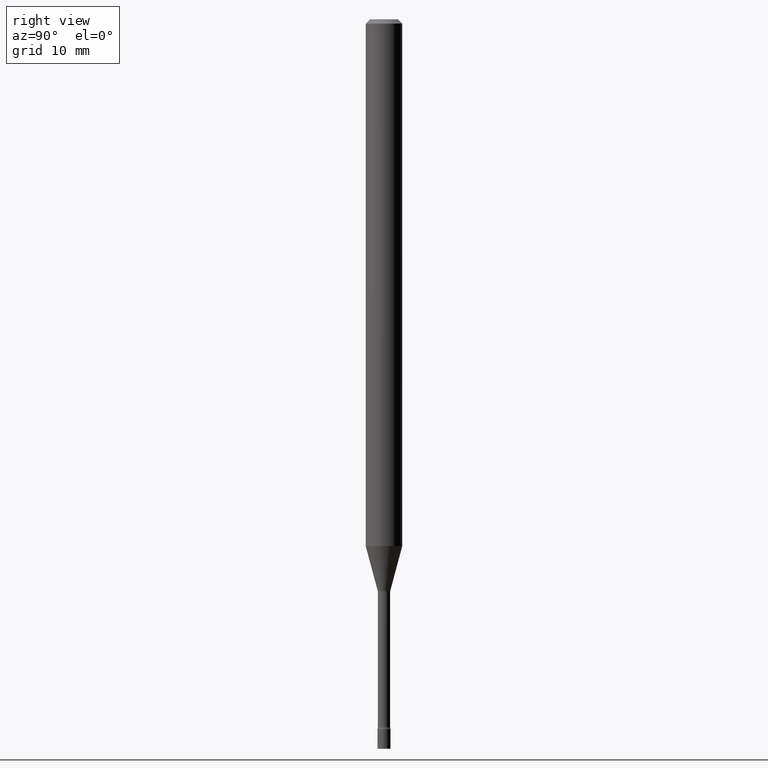
[diagram: clean part render]
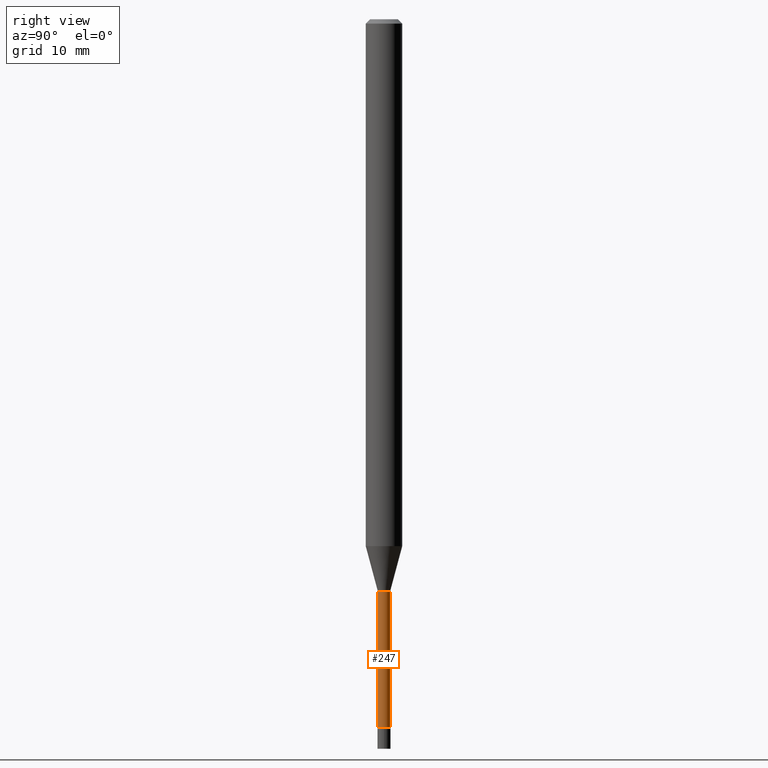
[diagram: same view with one face highlighted and labeled with its STEP entity id]
A machine part, right view. The second image highlights one B-rep face of the part: STEP entity #247.
In plain terms, the highlighted cylindrical surface (edge-blend (fillet) strip) has radius 0.5372 mm, axis along (-0, 0, 1).
Its self-contained STEP definition (entity closure, byte-faithful):
#1 = VECTOR ( 'NONE', #246, 39.37007874015748143 ) ;
#18 = EDGE_CURVE ( 'NONE', #164, #354, #352, .T. ) ;
#23 = VECTOR ( 'NONE', #513, 39.37007874015748143 ) ;
#27 = DIRECTION ( 'NONE',  ( -2.445429312206103475E-29, 3.491537896468978830E-15, 1.000000000000000000 ) ) ;
#54 = ORIENTED_EDGE ( 'NONE', *, *, #487, .F. ) ;
#65 = DIRECTION ( 'NONE',  ( -2.445429312206103475E-29, 3.491537896468978830E-15, 1.000000000000000000 ) ) ;
#68 = CARTESIAN_POINT ( 'NONE',  ( 4.797870655073343922E-29, -6.850309322346566951E-15, -1.961974787463811154 ) ) ;
#94 = CARTESIAN_POINT ( 'NONE',  ( -1.476896606330647239E-16, -0.02115000000000002642, 7.384602651031899085E-17 ) ) ;
#101 = CYLINDRICAL_SURFACE ( 'NONE', #499, 0.02115000000000002642 ) ;
#116 = CIRCLE ( 'NONE', #478, 0.02114999999999999866 ) ;
#120 = EDGE_CURVE ( 'NONE', #354, #515, #512, .T. ) ;
#129 = ORIENTED_EDGE ( 'NONE', *, *, #18, .T. ) ;
#149 = CARTESIAN_POINT ( 'NONE',  ( -1.476896606330055594E-16, -0.02115000000000851962, -2.425780876267511932 ) ) ;
#158 = CARTESIAN_POINT ( 'NONE',  ( 1.550759520797014538E-16, 0.02114999999999158178, -2.425780876267511932 ) ) ;
#163 = AXIS2_PLACEMENT_3D ( 'NONE', #462, #27, #210 ) ;
#164 = VERTEX_POINT ( 'NONE', #149 ) ;
#183 = DIRECTION ( 'NONE',  ( -6.982962677686266711E-15, -1.000000000000000000, 0.000000000000000000 ) ) ;
#210 = DIRECTION ( 'NONE',  ( -6.982962677686266711E-15, -1.000000000000000000, 0.000000000000000000 ) ) ;
#246 = DIRECTION ( 'NONE',  ( -2.445429312206103195E-29, 3.491537896468978830E-15, 1.000000000000000000 ) ) ;
#247 = ADVANCED_FACE ( 'NONE', ( #468 ), #101, .T. ) ;
#259 = CARTESIAN_POINT ( 'NONE',  ( 1.502797886133206648E-16, 0.02114999999999314997, -1.961974787463811154 ) ) ;
#260 = CARTESIAN_POINT ( 'NONE',  ( 0.000000000000000000, 0.000000000000000000, 0.000000000000000000 ) ) ;
#331 = EDGE_CURVE ( 'NONE', #164, #348, #494, .T. ) ;
#333 = DIRECTION ( 'NONE',  ( -2.445429312206103475E-29, 3.491537896468978830E-15, 1.000000000000000000 ) ) ;
#348 = VERTEX_POINT ( 'NONE', #466 ) ;
#352 = CIRCLE ( 'NONE', #163, 0.02115000000000005070 ) ;
#354 = VERTEX_POINT ( 'NONE', #158 ) ;
#359 = ORIENTED_EDGE ( 'NONE', *, *, #331, .F. ) ;
#362 = CARTESIAN_POINT ( 'NONE',  ( 1.502797886132613524E-16, 0.02115000000000002642, -7.384602651031899085E-17 ) ) ;
#415 = ORIENTED_EDGE ( 'NONE', *, *, #120, .T. ) ;
#433 = EDGE_LOOP ( 'NONE', ( #129, #415, #54, #359 ) ) ;
#462 = CARTESIAN_POINT ( 'NONE',  ( 5.932075659813581238E-29, -8.469705858017744086E-15, -2.425780876267511932 ) ) ;
#466 = CARTESIAN_POINT ( 'NONE',  ( -1.476896606330165541E-16, -0.02115000000000685082, -1.961974787463811154 ) ) ;
#468 = FACE_OUTER_BOUND ( 'NONE', #433, .T. ) ;
#478 = AXIS2_PLACEMENT_3D ( 'NONE', #68, #65, #183 ) ;
#487 = EDGE_CURVE ( 'NONE', #348, #515, #116, .T. ) ;
#494 = LINE ( 'NONE', #94, #23 ) ;
#495 = DIRECTION ( 'NONE',  ( -6.982962677686266711E-15, -1.000000000000000000, 3.491537896468978830E-15 ) ) ;
#499 = AXIS2_PLACEMENT_3D ( 'NONE', #260, #333, #495 ) ;
#512 = LINE ( 'NONE', #362, #1 ) ;
#513 = DIRECTION ( 'NONE',  ( -2.445429312206103195E-29, 3.491537896468978830E-15, 1.000000000000000000 ) ) ;
#515 = VERTEX_POINT ( 'NONE', #259 ) ;